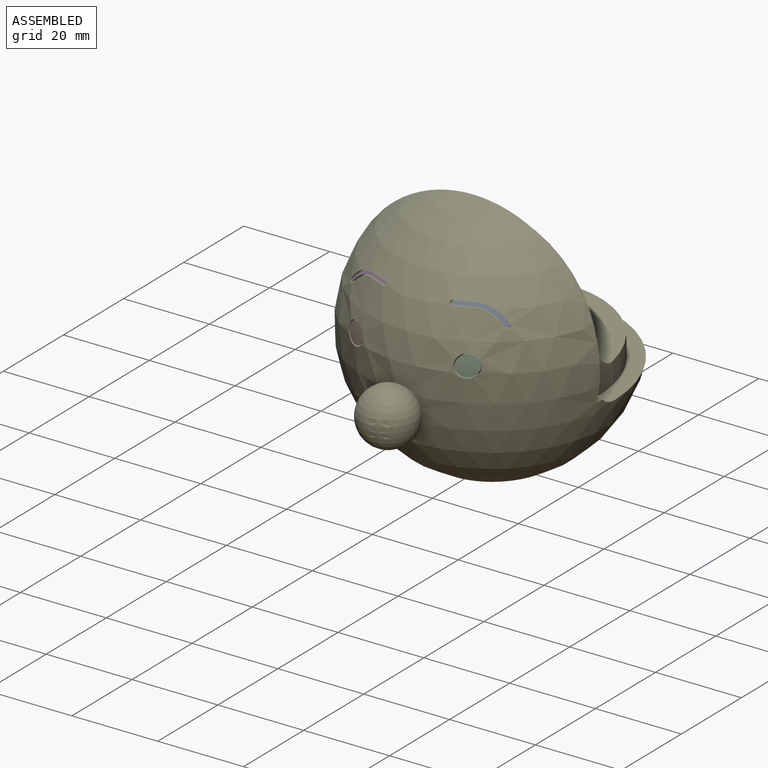
[diagram: assembled view]
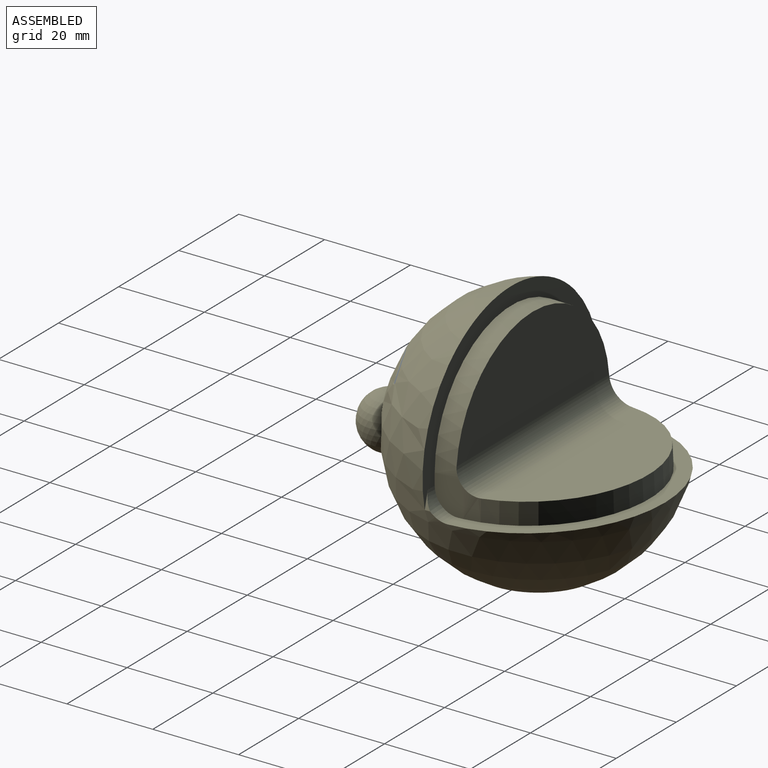
[diagram: assembled view, second angle]
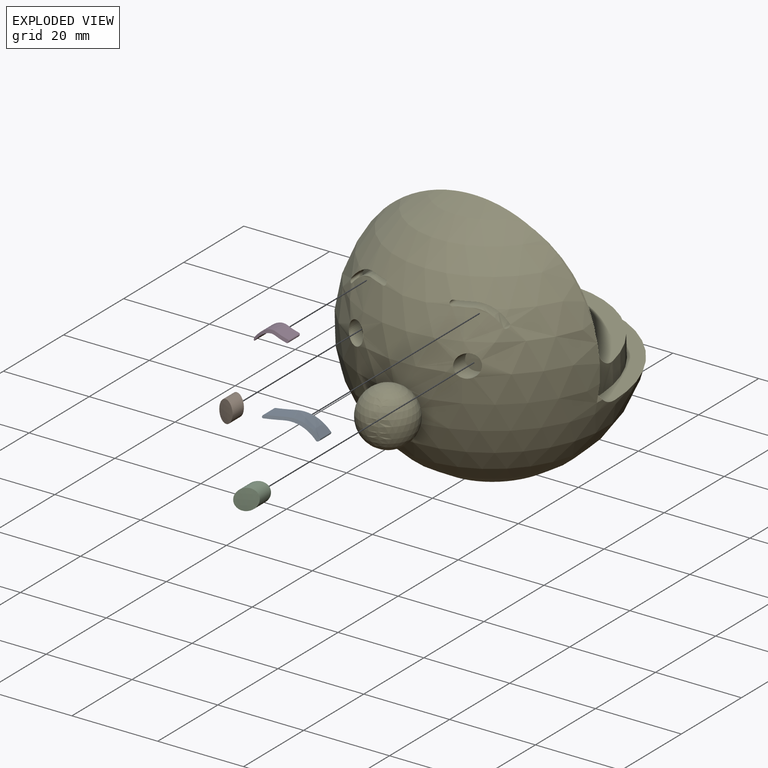
[diagram: exploded view]
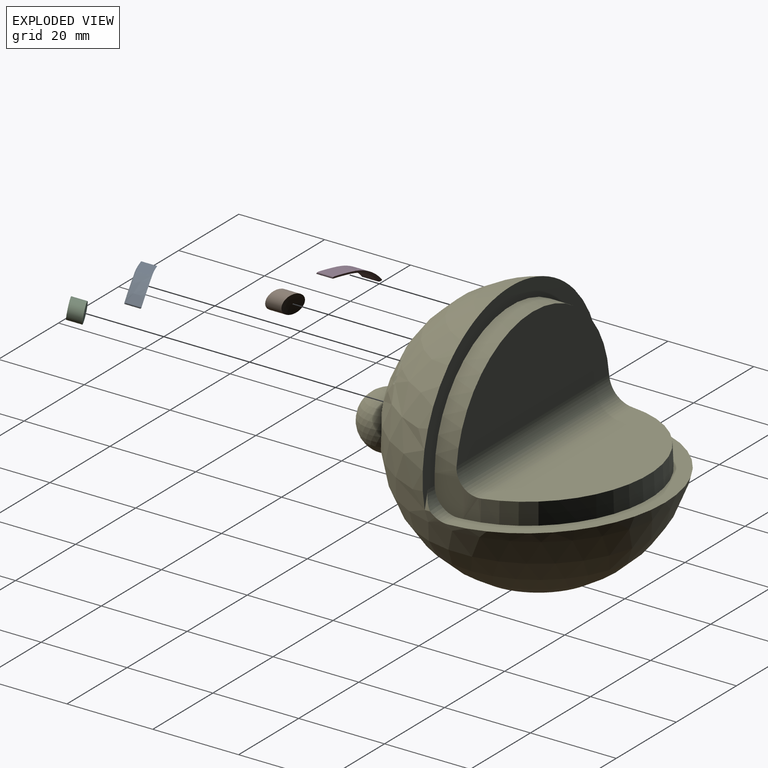
[diagram: exploded view, second angle]
ASSEMBLY  parts=5 mates=4
PART A: 8 faces, bbox 10.9x11.1x4.2 mm
  f0: sphere r=30.24mm, area 9.6mm2, adj f2,f3,f4,f5,f6,f7
  f1: sphere r=30.44mm, area 9.5mm2, adj f2,f3,f4,f5,f6,f7
  f2: extruded ~6.19x5.67mm, area 27.3mm2, adj f0,f1,f3,f4
  f3: cylinder r=0.3mm len=4.33mm, axis (0,1,0), area 3.5mm2, adj f0,f1,f2,f7
  f4: plane 5.27x3.75mm, normal (0,0,-1), area 14mm2, adj f0,f1,f2,f5
  f5: cylinder r=0.3mm len=4.14mm, axis (0,1,0), area 3.5mm2, adj f0,f1,f4,f6
  f6: plane 5.29x3.75mm, normal (0,0,1), area 14mm2, adj f0,f1,f5,f7
  f7: extruded ~6.65x5.87mm, area 29.2mm2, adj f0,f1,f3,f6
PART B: 3 faces, bbox 4.9x6.7x4.6 mm
  f0: sphere r=30.24mm, area 18.7mm2, adj f2
  f1: sphere r=30.44mm, area 18.7mm2, adj f2
  f2: cylinder r=2.3mm len=6.14mm, axis (0,1,0), area 54.5mm2, adj f0,f1
PART C: 3 faces, bbox 4.9x6.7x4.6 mm
  f0: sphere r=30.44mm, area 18.7mm2, adj f1
  f1: cylinder r=2.3mm len=6.14mm, axis (0,1,0), area 54.5mm2, adj f0,f2
  f2: sphere r=30.24mm, area 18.7mm2, adj f1
PART D: 8 faces, bbox 10.9x11.1x4.2 mm
  f0: sphere r=30.24mm, area 9.6mm2, adj f2,f3,f4,f5,f6,f7
  f1: sphere r=30.44mm, area 9.5mm2, adj f2,f3,f4,f5,f6,f7
  f2: cylinder r=0.3mm len=4.33mm, axis (0,1,0), area 3.5mm2, adj f0,f1,f3,f4
  f3: extruded ~6.19x5.67mm, area 27.3mm2, adj f0,f1,f2,f7
  f4: extruded ~6.65x5.87mm, area 29.2mm2, adj f0,f1,f2,f5
  f5: plane 5.29x3.75mm, normal (0,0,1), area 14mm2, adj f0,f1,f4,f6
  f6: cylinder r=0.3mm len=4.14mm, axis (0,1,0), area 3.5mm2, adj f0,f1,f5,f7
  f7: plane 5.27x3.75mm, normal (0,0,-1), area 14mm2, adj f0,f1,f3,f6
PART E: 35 faces, bbox 105.8x104.6x62.5 mm
  f0: sphere r=30.24mm, area 6539.5mm2, adj f1,f3,f5,f6,f7,f8,f9,f10
  f1: cylinder r=2.5mm len=6.59mm, axis (0,1,0), area 62.8mm2, adj f0,f2
  f2: sphere r=30.24mm, area 22.2mm2, adj f1
  f3: plane 5.56x3.75mm, normal (0,0,-1), area 15mm2, adj f0,f4,f5,f9
  f4: sphere r=30.24mm, area 16.4mm2, adj f3,f5,f6,f7,f8,f9
  f5: extruded ~6.81x6.24mm, area 32.1mm2, adj f0,f3,f4,f6
  f6: cylinder r=0.5mm len=5.04mm, axis (0,1,0), area 6.3mm2, adj f0,f4,f5,f7
  f7: extruded ~6.03x5.89mm, area 28.6mm2, adj f0,f4,f6,f8
  f8: plane 5.52x3.75mm, normal (0,0,1), area 15mm2, adj f0,f4,f7,f9
  f9: cylinder r=0.5mm len=4.65mm, axis (0,1,0), area 6.3mm2, adj f0,f3,f4,f8
  f10: sphere r=6.5mm, area 479.7mm2, adj f0
  f11: cylinder r=0.5mm len=4.65mm, axis (0,1,0), area 6.3mm2, adj f0,f12,f13,f17
  f12: sphere r=30.24mm, area 16.4mm2, adj f11,f13,f14,f15,f16,f17
  f13: plane 5.52x3.75mm, normal (0,0,1), area 15mm2, adj f0,f11,f12,f14
  f14: extruded ~6.03x5.89mm, area 28.6mm2, adj f0,f12,f13,f15
  f15: cylinder r=0.5mm len=5.04mm, axis (0,1,0), area 6.3mm2, adj f0,f12,f14,f16
  f16: extruded ~6.81x6.24mm, area 32.1mm2, adj f0,f12,f15,f17
  f17: plane 5.56x3.75mm, normal (0,0,-1), area 15mm2, adj f0,f11,f12,f16
  f18: cylinder r=2.5mm len=6.59mm, axis (0,1,0), area 62.8mm2, adj f0,f19
  f19: sphere r=30.24mm, area 22.2mm2, adj f18
  f20: plane 59.15x36.18mm, normal (0,1,0), area 379.4mm2, adj f0,f21,f26,f27,f28,f29,f31,f32
  f21: plane 8.03x6.72mm, normal (-1,0,0), area 45.9mm2, adj f20,f22,f24,f26,f30,f31
  f22: cylinder r=25.52mm len=51.05mm, axis (0,0.05,-1), area 409.1mm2, adj f21,f23,f24,f27,f30
  f23: plane 50.38x21.37mm, normal (0,-0.05,1), area 813.5mm2, adj f22,f24
  f24: cylinder r=5.3mm len=51.05mm, axis (1,0,0), area 437.2mm2, adj f21,f22,f23,f25,f26,f27
  f25: plane 50.79x22.99mm, normal (0,1,0), area 894mm2, adj f24,f26
  f26: cylinder r=25.52mm len=51.05mm, axis (0,-1,0), area 402.6mm2, adj f20,f21,f24,f25,f27
  f27: plane 8.03x6.72mm, normal (1,0,0), area 45.9mm2, adj f20,f22,f24,f26,f29,f30
  f28: offset ~9.88x7.1mm, area 3mm2, adj f0,f20,f29
  f29: cylinder r=5.3mm len=5.58mm, axis (1,0,0), area 28.6mm2, adj f0,f20,f27,f28,f30
  f30: plane 58.34x30.27mm, normal (0,-0.05,1), area 321.5mm2, adj f0,f21,f22,f27,f29,f31
  f31: cylinder r=5.3mm len=5.58mm, axis (1,0,0), area 28.6mm2, adj f0,f20,f21,f30,f32
  f32: offset ~9.88x7.1mm, area 3mm2, adj f0,f20,f31
  f33: offset ~88.89x75.51mm, area 766.3mm2, adj f0,f34
  f34: sphere r=25.24mm, area 26.7mm2, adj f33
PLACE A t=(0,-0.02,0)mm
PLACE B at identity
PLACE C t=(0,-0.01,0)mm
PLACE D t=(0,-0.02,0)mm
PLACE E t=(0,-0.14,0)mm
MATE fastened E.f1 <-> B.f2  axis (0,1,0) through (-13,-24.88,130.27)mm
MATE fastened A.f5 <-> E.f11  axis (0,1,0) through (7.87,-22.68,141.38)mm
MATE fastened C.f1 <-> E.f18  axis (0,1,0) through (13,-24.89,130.27)mm
MATE fastened D.f6 <-> E.f9  axis (0,1,0) through (-7.87,-22.68,141.38)mm
